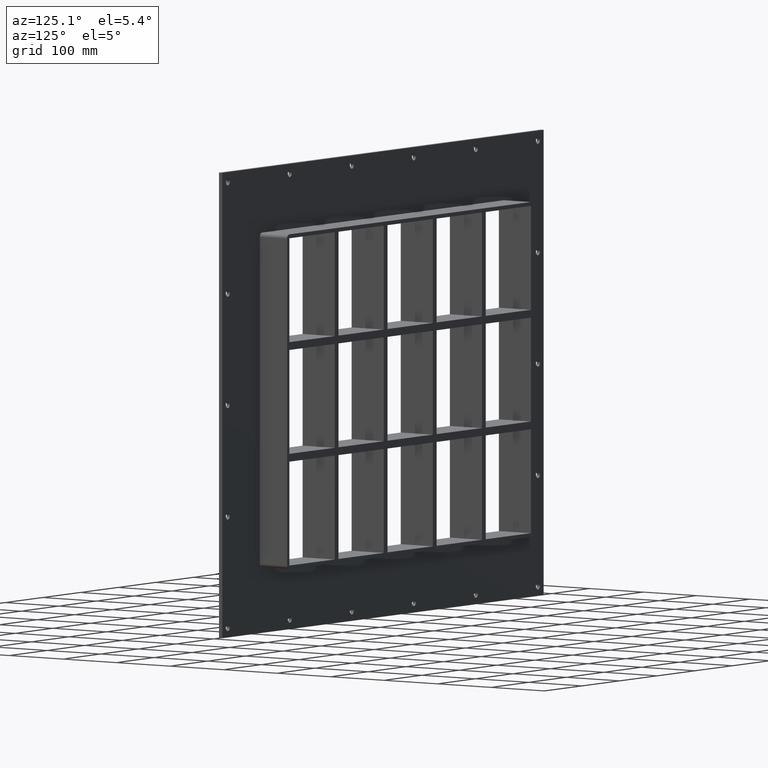
[diagram: clean part render]
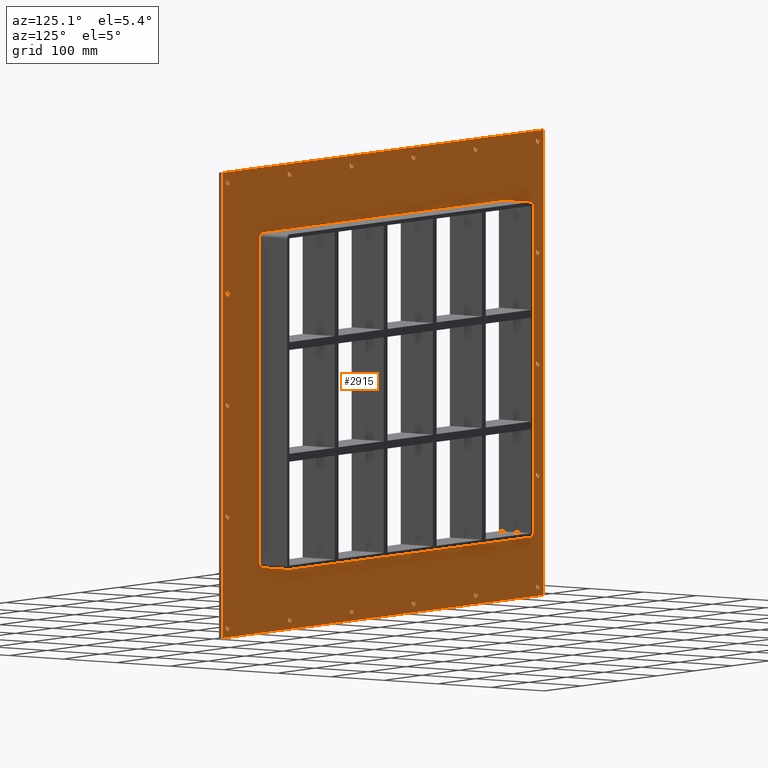
[diagram: same view with one face highlighted and labeled with its STEP entity id]
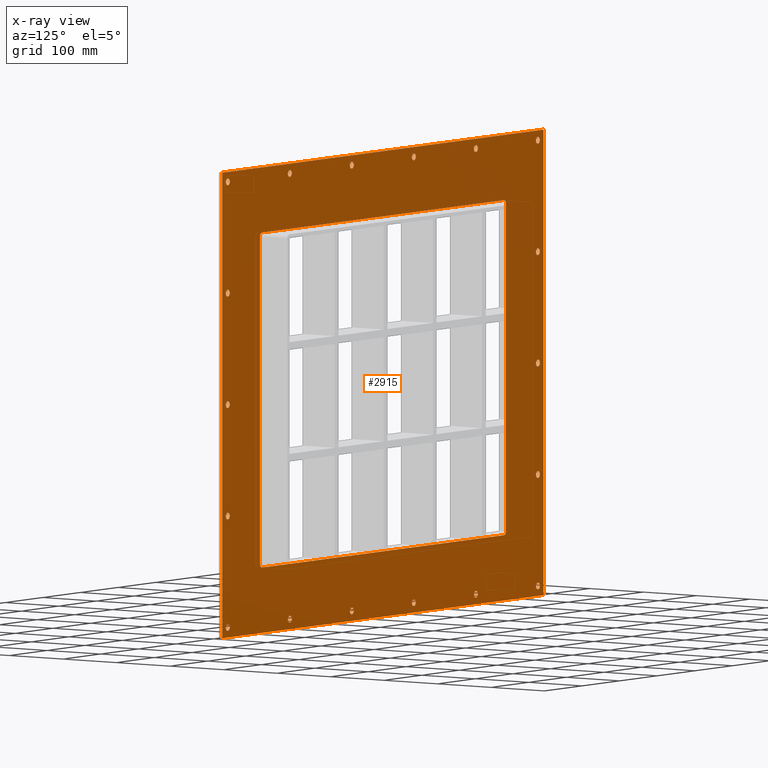
[diagram: x-ray of the same camera — body ghosted, the highlighted face saturated]
A machine part, auxiliary view. The second image highlights one B-rep face of the part: STEP entity #2915.
The next image is the same camera in x-ray: the body ghosted, the highlighted face saturated — about 0% of this face is hidden behind the body in this view.
In plain terms, the highlighted planar face has unit normal (0, 1, 0).
Its self-contained STEP definition (entity closure, byte-faithful):
#73=CARTESIAN_POINT('',(-417.50000000000006,5.999999999999943,-342.25000000000011));
#74=VERTEX_POINT('',#73);
#75=CARTESIAN_POINT('',(-412.25000000000011,5.999999999999943,-342.25000000000011));
#76=DIRECTION('',(0.0,-1.0,0.0));
#77=DIRECTION('',(1.0,0.0,0.0));
#78=AXIS2_PLACEMENT_3D('',#75,#76,#77);
#79=CIRCLE('',#78,5.25);
#80=EDGE_CURVE('',#74,#74,#79,.T.);
#101=CARTESIAN_POINT('',(407.00000000000011,5.999999999999943,-171.15000000000009));
#102=VERTEX_POINT('',#101);
#103=CARTESIAN_POINT('',(412.25000000000011,5.999999999999943,-171.15000000000009));
#104=DIRECTION('',(0.0,-1.0,0.0));
#105=DIRECTION('',(1.0,0.0,0.0));
#106=AXIS2_PLACEMENT_3D('',#103,#104,#105);
#107=CIRCLE('',#106,5.25);
#108=EDGE_CURVE('',#102,#102,#107,.T.);
#129=CARTESIAN_POINT('',(-417.50000000000006,5.999999999999943,-171.15000000000009));
#130=VERTEX_POINT('',#129);
#131=CARTESIAN_POINT('',(-412.25000000000011,5.999999999999943,-171.15000000000009));
#132=DIRECTION('',(0.0,-1.0,0.0));
#133=DIRECTION('',(1.0,0.0,0.0));
#134=AXIS2_PLACEMENT_3D('',#131,#132,#133);
#135=CIRCLE('',#134,5.25);
#136=EDGE_CURVE('',#130,#130,#135,.T.);
#157=CARTESIAN_POINT('',(407.00000000000011,5.999999999999943,-0.050000000000097));
#158=VERTEX_POINT('',#157);
#159=CARTESIAN_POINT('',(412.25000000000011,5.999999999999943,-0.050000000000097));
#160=DIRECTION('',(0.0,-1.0,0.0));
#161=DIRECTION('',(1.0,0.0,0.0));
#162=AXIS2_PLACEMENT_3D('',#159,#160,#161);
#163=CIRCLE('',#162,5.25);
#164=EDGE_CURVE('',#158,#158,#163,.T.);
#185=CARTESIAN_POINT('',(-417.50000000000006,5.999999999999943,-0.050000000000097));
#186=VERTEX_POINT('',#185);
#187=CARTESIAN_POINT('',(-412.25000000000011,5.999999999999943,-0.050000000000097));
#188=DIRECTION('',(0.0,-1.0,0.0));
#189=DIRECTION('',(1.0,0.0,0.0));
#190=AXIS2_PLACEMENT_3D('',#187,#188,#189);
#191=CIRCLE('',#190,5.25);
#192=EDGE_CURVE('',#186,#186,#191,.T.);
#213=CARTESIAN_POINT('',(407.00000000000011,5.999999999999943,171.0499999999999));
#214=VERTEX_POINT('',#213);
#215=CARTESIAN_POINT('',(412.25000000000011,5.999999999999943,171.0499999999999));
#216=DIRECTION('',(0.0,-1.0,0.0));
#217=DIRECTION('',(1.0,0.0,0.0));
#218=AXIS2_PLACEMENT_3D('',#215,#216,#217);
#219=CIRCLE('',#218,5.25);
#220=EDGE_CURVE('',#214,#214,#219,.T.);
#241=CARTESIAN_POINT('',(-417.50000000000006,5.999999999999943,171.0499999999999));
#242=VERTEX_POINT('',#241);
#243=CARTESIAN_POINT('',(-412.25000000000011,5.999999999999943,171.0499999999999));
#244=DIRECTION('',(0.0,-1.0,0.0));
#245=DIRECTION('',(1.0,0.0,0.0));
#246=AXIS2_PLACEMENT_3D('',#243,#244,#245);
#247=CIRCLE('',#246,5.25);
#248=EDGE_CURVE('',#242,#242,#247,.T.);
#269=CARTESIAN_POINT('',(-252.59999999999997,5.999999999999943,342.14999999999986));
#270=VERTEX_POINT('',#269);
#271=CARTESIAN_POINT('',(-247.34999999999999,5.999999999999943,342.14999999999986));
#272=DIRECTION('',(0.0,-1.0,0.0));
#273=DIRECTION('',(1.0,0.0,0.0));
#274=AXIS2_PLACEMENT_3D('',#271,#272,#273);
#275=CIRCLE('',#274,5.25);
#276=EDGE_CURVE('',#270,#270,#275,.T.);
#297=CARTESIAN_POINT('',(-252.59999999999997,5.999999999999943,-342.25000000000011));
#298=VERTEX_POINT('',#297);
#299=CARTESIAN_POINT('',(-247.34999999999999,5.999999999999943,-342.25000000000011));
#300=DIRECTION('',(0.0,-1.0,0.0));
#301=DIRECTION('',(1.0,0.0,0.0));
#302=AXIS2_PLACEMENT_3D('',#299,#300,#301);
#303=CIRCLE('',#302,5.25);
#304=EDGE_CURVE('',#298,#298,#303,.T.);
#325=CARTESIAN_POINT('',(-87.69999999999996,5.999999999999943,342.14999999999986));
#326=VERTEX_POINT('',#325);
#327=CARTESIAN_POINT('',(-82.449999999999974,5.999999999999943,342.14999999999986));
#328=DIRECTION('',(0.0,-1.0,0.0));
#329=DIRECTION('',(1.0,0.0,0.0));
#330=AXIS2_PLACEMENT_3D('',#327,#328,#329);
#331=CIRCLE('',#330,5.25);
#332=EDGE_CURVE('',#326,#326,#331,.T.);
#353=CARTESIAN_POINT('',(-87.69999999999996,5.999999999999943,-342.25000000000011));
#354=VERTEX_POINT('',#353);
#355=CARTESIAN_POINT('',(-82.449999999999974,5.999999999999943,-342.25000000000011));
#356=DIRECTION('',(0.0,-1.0,0.0));
#357=DIRECTION('',(1.0,0.0,0.0));
#358=AXIS2_PLACEMENT_3D('',#355,#356,#357);
#359=CIRCLE('',#358,5.25);
#360=EDGE_CURVE('',#354,#354,#359,.T.);
#381=CARTESIAN_POINT('',(77.20000000000006,5.999999999999943,342.14999999999986));
#382=VERTEX_POINT('',#381);
#383=CARTESIAN_POINT('',(82.450000000000045,5.999999999999943,342.14999999999986));
#384=DIRECTION('',(0.0,-1.0,0.0));
#385=DIRECTION('',(1.0,0.0,0.0));
#386=AXIS2_PLACEMENT_3D('',#383,#384,#385);
#387=CIRCLE('',#386,5.25);
#388=EDGE_CURVE('',#382,#382,#387,.T.);
#409=CARTESIAN_POINT('',(77.20000000000006,5.999999999999943,-342.25000000000011));
#410=VERTEX_POINT('',#409);
#411=CARTESIAN_POINT('',(82.450000000000045,5.999999999999943,-342.25000000000011));
#412=DIRECTION('',(0.0,-1.0,0.0));
#413=DIRECTION('',(1.0,0.0,0.0));
#414=AXIS2_PLACEMENT_3D('',#411,#412,#413);
#415=CIRCLE('',#414,5.25);
#416=EDGE_CURVE('',#410,#410,#415,.T.);
#437=CARTESIAN_POINT('',(242.10000000000008,5.999999999999943,342.14999999999986));
#438=VERTEX_POINT('',#437);
#439=CARTESIAN_POINT('',(247.35000000000008,5.999999999999943,342.14999999999986));
#440=DIRECTION('',(0.0,-1.0,0.0));
#441=DIRECTION('',(1.0,0.0,0.0));
#442=AXIS2_PLACEMENT_3D('',#439,#440,#441);
#443=CIRCLE('',#442,5.25);
#444=EDGE_CURVE('',#438,#438,#443,.T.);
#465=CARTESIAN_POINT('',(242.10000000000008,5.999999999999943,-342.25000000000011));
#466=VERTEX_POINT('',#465);
#467=CARTESIAN_POINT('',(247.35000000000008,5.999999999999943,-342.25000000000011));
#468=DIRECTION('',(0.0,-1.0,0.0));
#469=DIRECTION('',(1.0,0.0,0.0));
#470=AXIS2_PLACEMENT_3D('',#467,#468,#469);
#471=CIRCLE('',#470,5.25);
#472=EDGE_CURVE('',#466,#466,#471,.T.);
#493=CARTESIAN_POINT('',(407.00000000000011,5.999999999999943,-342.25000000000011));
#494=VERTEX_POINT('',#493);
#495=CARTESIAN_POINT('',(412.25000000000011,5.999999999999943,-342.25000000000011));
#496=DIRECTION('',(0.0,-1.0,0.0));
#497=DIRECTION('',(1.0,0.0,0.0));
#498=AXIS2_PLACEMENT_3D('',#495,#496,#497);
#499=CIRCLE('',#498,5.25);
#500=EDGE_CURVE('',#494,#494,#499,.T.);
#521=CARTESIAN_POINT('',(-417.50000000000006,5.999999999999943,342.14999999999986));
#522=VERTEX_POINT('',#521);
#523=CARTESIAN_POINT('',(-412.25000000000011,5.999999999999943,342.14999999999986));
#524=DIRECTION('',(0.0,-1.0,0.0));
#525=DIRECTION('',(1.0,0.0,0.0));
#526=AXIS2_PLACEMENT_3D('',#523,#524,#525);
#527=CIRCLE('',#526,5.25);
#528=EDGE_CURVE('',#522,#522,#527,.T.);
#549=CARTESIAN_POINT('',(407.00000000000011,5.999999999999943,342.14999999999986));
#550=VERTEX_POINT('',#549);
#551=CARTESIAN_POINT('',(412.25000000000011,5.999999999999943,342.14999999999986));
#552=DIRECTION('',(0.0,-1.0,0.0));
#553=DIRECTION('',(1.0,0.0,0.0));
#554=AXIS2_PLACEMENT_3D('',#551,#552,#553);
#555=CIRCLE('',#554,5.25);
#556=EDGE_CURVE('',#550,#550,#555,.T.);
#2752=CARTESIAN_POINT('',(4.347489E-014,6.000000000000001,-3.260617E-014));
#2753=DIRECTION('',(0.0,1.0,0.0));
#2754=DIRECTION('',(0.0,0.0,1.0));
#2755=AXIS2_PLACEMENT_3D('',#2752,#2753,#2754);
#2756=PLANE('',#2755);
#2757=CARTESIAN_POINT('',(-427.24999999999994,6.000000000000001,357.25));
#2758=VERTEX_POINT('',#2757);
#2759=CARTESIAN_POINT('',(427.24999999999994,6.000000000000001,357.25));
#2760=VERTEX_POINT('',#2759);
#2761=CARTESIAN_POINT('',(-427.24999999999994,6.000000000000001,357.25));
#2762=DIRECTION('',(1.0,0.0,0.0));
#2763=VECTOR('',#2762,854.49999999999989);
#2764=LINE('',#2761,#2763);
#2765=EDGE_CURVE('',#2758,#2760,#2764,.T.);
#2766=ORIENTED_EDGE('',*,*,#2765,.T.);
#2767=CARTESIAN_POINT('',(427.24999999999994,6.000000000000001,-357.25000000000017));
#2768=VERTEX_POINT('',#2767);
#2769=CARTESIAN_POINT('',(427.25,6.000000000000001,357.25));
#2770=DIRECTION('',(0.0,0.0,-1.0));
#2771=VECTOR('',#2770,714.50000000000023);
#2772=LINE('',#2769,#2771);
#2773=EDGE_CURVE('',#2760,#2768,#2772,.T.);
#2774=ORIENTED_EDGE('',*,*,#2773,.T.);
#2775=CARTESIAN_POINT('',(-427.24999999999994,6.000000000000001,-357.25000000000017));
#2776=VERTEX_POINT('',#2775);
#2777=CARTESIAN_POINT('',(427.25,6.000000000000001,-357.25000000000011));
#2778=DIRECTION('',(-1.0,0.0,0.0));
#2779=VECTOR('',#2778,854.49999999999989);
#2780=LINE('',#2777,#2779);
#2781=EDGE_CURVE('',#2768,#2776,#2780,.T.);
#2782=ORIENTED_EDGE('',*,*,#2781,.T.);
#2783=CARTESIAN_POINT('',(-427.24999999999994,6.000000000000001,-357.25000000000011));
#2784=DIRECTION('',(0.0,0.0,1.0));
#2785=VECTOR('',#2784,714.50000000000023);
#2786=LINE('',#2783,#2785);
#2787=EDGE_CURVE('',#2776,#2758,#2786,.T.);
#2788=ORIENTED_EDGE('',*,*,#2787,.T.);
#2789=EDGE_LOOP('',(#2766,#2774,#2782,#2788));
#2790=FACE_OUTER_BOUND('',#2789,.T.);
#2791=ORIENTED_EDGE('',*,*,#80,.T.);
#2792=EDGE_LOOP('',(#2791));
#2793=FACE_BOUND('',#2792,.T.);
#2794=ORIENTED_EDGE('',*,*,#108,.T.);
#2795=EDGE_LOOP('',(#2794));
#2796=FACE_BOUND('',#2795,.T.);
#2797=ORIENTED_EDGE('',*,*,#136,.T.);
#2798=EDGE_LOOP('',(#2797));
#2799=FACE_BOUND('',#2798,.T.);
#2800=ORIENTED_EDGE('',*,*,#164,.T.);
#2801=EDGE_LOOP('',(#2800));
#2802=FACE_BOUND('',#2801,.T.);
#2803=ORIENTED_EDGE('',*,*,#192,.T.);
#2804=EDGE_LOOP('',(#2803));
#2805=FACE_BOUND('',#2804,.T.);
#2806=ORIENTED_EDGE('',*,*,#220,.T.);
#2807=EDGE_LOOP('',(#2806));
#2808=FACE_BOUND('',#2807,.T.);
#2809=ORIENTED_EDGE('',*,*,#248,.T.);
#2810=EDGE_LOOP('',(#2809));
#2811=FACE_BOUND('',#2810,.T.);
#2812=ORIENTED_EDGE('',*,*,#276,.T.);
#2813=EDGE_LOOP('',(#2812));
#2814=FACE_BOUND('',#2813,.T.);
#2815=ORIENTED_EDGE('',*,*,#304,.T.);
#2816=EDGE_LOOP('',(#2815));
#2817=FACE_BOUND('',#2816,.T.);
#2818=ORIENTED_EDGE('',*,*,#332,.T.);
#2819=EDGE_LOOP('',(#2818));
#2820=FACE_BOUND('',#2819,.T.);
#2821=ORIENTED_EDGE('',*,*,#360,.T.);
#2822=EDGE_LOOP('',(#2821));
#2823=FACE_BOUND('',#2822,.T.);
#2824=ORIENTED_EDGE('',*,*,#388,.T.);
#2825=EDGE_LOOP('',(#2824));
#2826=FACE_BOUND('',#2825,.T.);
#2827=ORIENTED_EDGE('',*,*,#416,.T.);
#2828=EDGE_LOOP('',(#2827));
#2829=FACE_BOUND('',#2828,.T.);
#2830=ORIENTED_EDGE('',*,*,#444,.T.);
#2831=EDGE_LOOP('',(#2830));
#2832=FACE_BOUND('',#2831,.T.);
#2833=ORIENTED_EDGE('',*,*,#472,.T.);
#2834=EDGE_LOOP('',(#2833));
#2835=FACE_BOUND('',#2834,.T.);
#2836=ORIENTED_EDGE('',*,*,#500,.T.);
#2837=EDGE_LOOP('',(#2836));
#2838=FACE_BOUND('',#2837,.T.);
#2839=ORIENTED_EDGE('',*,*,#528,.T.);
#2840=EDGE_LOOP('',(#2839));
#2841=FACE_BOUND('',#2840,.T.);
#2842=ORIENTED_EDGE('',*,*,#556,.T.);
#2843=EDGE_LOOP('',(#2842));
#2844=FACE_BOUND('',#2843,.T.);
#2845=CARTESIAN_POINT('',(-327.25,6.000000000000001,251.25));
#2846=VERTEX_POINT('',#2845);
#2847=CARTESIAN_POINT('',(-321.25,6.000000000000001,257.25));
#2848=VERTEX_POINT('',#2847);
#2849=CARTESIAN_POINT('',(-321.25,6.000000000000001,251.25));
#2850=DIRECTION('',(0.0,1.0,0.0));
#2851=DIRECTION('',(-0.707106781186543,0.0,0.707106781186552));
#2852=AXIS2_PLACEMENT_3D('',#2849,#2850,#2851);
#2853=CIRCLE('',#2852,6.000000000000001);
#2854=EDGE_CURVE('',#2846,#2848,#2853,.T.);
#2855=ORIENTED_EDGE('',*,*,#2854,.F.);
#2856=CARTESIAN_POINT('',(-327.25,6.000000000000001,-251.25));
#2857=VERTEX_POINT('',#2856);
#2858=CARTESIAN_POINT('',(-327.25,6.000000000000001,-251.25));
#2859=DIRECTION('',(0.0,0.0,1.0));
#2860=VECTOR('',#2859,502.5);
#2861=LINE('',#2858,#2860);
#2862=EDGE_CURVE('',#2857,#2846,#2861,.T.);
#2863=ORIENTED_EDGE('',*,*,#2862,.F.);
#2864=CARTESIAN_POINT('',(-321.25,6.000000000000001,-257.25));
#2865=VERTEX_POINT('',#2864);
#2866=CARTESIAN_POINT('',(-321.25,6.000000000000001,-251.25));
#2867=DIRECTION('',(0.0,1.0,0.0));
#2868=DIRECTION('',(-0.707106781186543,0.0,-0.707106781186552));
#2869=AXIS2_PLACEMENT_3D('',#2866,#2867,#2868);
#2870=CIRCLE('',#2869,6.000000000000001);
#2871=EDGE_CURVE('',#2865,#2857,#2870,.T.);
#2872=ORIENTED_EDGE('',*,*,#2871,.F.);
#2873=CARTESIAN_POINT('',(321.25,6.000000000000001,-257.25));
#2874=VERTEX_POINT('',#2873);
#2875=CARTESIAN_POINT('',(321.25,6.000000000000001,-257.25));
#2876=DIRECTION('',(-1.0,0.0,0.0));
#2877=VECTOR('',#2876,642.5);
#2878=LINE('',#2875,#2877);
#2879=EDGE_CURVE('',#2874,#2865,#2878,.T.);
#2880=ORIENTED_EDGE('',*,*,#2879,.F.);
#2881=CARTESIAN_POINT('',(327.25,6.000000000000001,-251.25));
#2882=VERTEX_POINT('',#2881);
#2883=CARTESIAN_POINT('',(321.25,6.000000000000001,-251.25));
#2884=DIRECTION('',(0.0,1.0,0.0));
#2885=DIRECTION('',(0.707106781186543,0.0,-0.707106781186552));
#2886=AXIS2_PLACEMENT_3D('',#2883,#2884,#2885);
#2887=CIRCLE('',#2886,6.000000000000001);
#2888=EDGE_CURVE('',#2882,#2874,#2887,.T.);
#2889=ORIENTED_EDGE('',*,*,#2888,.F.);
#2890=CARTESIAN_POINT('',(327.25,6.000000000000001,251.25));
#2891=VERTEX_POINT('',#2890);
#2892=CARTESIAN_POINT('',(327.25,6.000000000000001,251.25));
#2893=DIRECTION('',(0.0,0.0,-1.0));
#2894=VECTOR('',#2893,502.5);
#2895=LINE('',#2892,#2894);
#2896=EDGE_CURVE('',#2891,#2882,#2895,.T.);
#2897=ORIENTED_EDGE('',*,*,#2896,.F.);
#2898=CARTESIAN_POINT('',(321.25,6.000000000000001,257.25));
#2899=VERTEX_POINT('',#2898);
#2900=CARTESIAN_POINT('',(321.25,6.000000000000001,251.25));
#2901=DIRECTION('',(0.0,1.0,0.0));
#2902=DIRECTION('',(0.707106781186543,0.0,0.707106781186552));
#2903=AXIS2_PLACEMENT_3D('',#2900,#2901,#2902);
#2904=CIRCLE('',#2903,6.000000000000001);
#2905=EDGE_CURVE('',#2899,#2891,#2904,.T.);
#2906=ORIENTED_EDGE('',*,*,#2905,.F.);
#2907=CARTESIAN_POINT('',(-321.25,6.000000000000001,257.25));
#2908=DIRECTION('',(1.0,0.0,0.0));
#2909=VECTOR('',#2908,642.5);
#2910=LINE('',#2907,#2909);
#2911=EDGE_CURVE('',#2848,#2899,#2910,.T.);
#2912=ORIENTED_EDGE('',*,*,#2911,.F.);
#2913=EDGE_LOOP('',(#2855,#2863,#2872,#2880,#2889,#2897,#2906,#2912));
#2914=FACE_BOUND('',#2913,.T.);
#2915=ADVANCED_FACE('',(#2790,#2793,#2796,#2799,#2802,#2805,#2808,#2811,#2814,#2817,#2820,#2823,#2826,#2829,#2832,#2835,#2838,#2841,#2844,#2914),#2756,.T.);